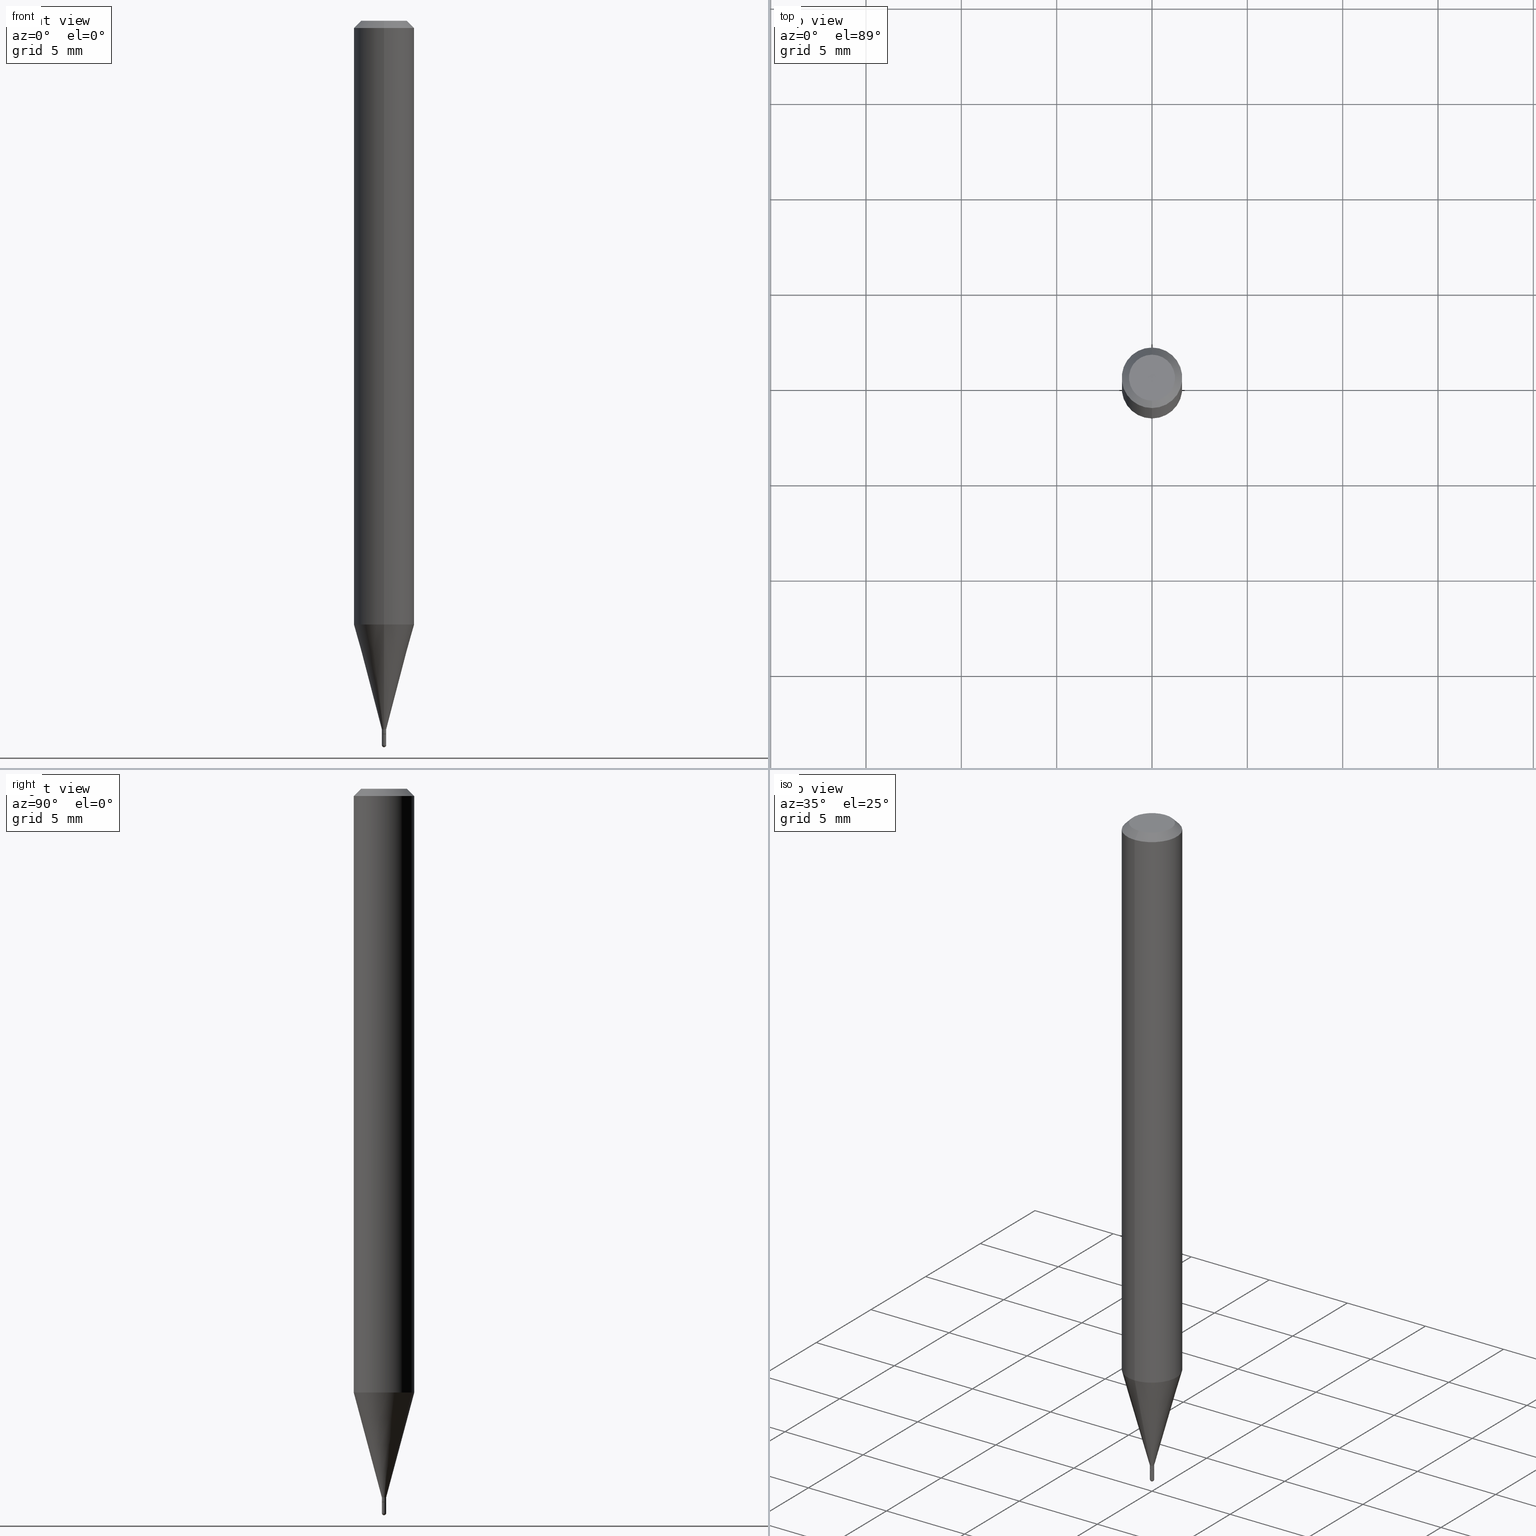
[diagram: canonical four-view strip — front | top / right | iso, engineering-drawing reading convention]
A machine part, canonical four-view strip (front | top / right | iso — engineering-drawing reading convention). The complete STEP part file that produces these views, byte-faithful:
ISO-10303-21;
HEADER;
FILE_DESCRIPTION (( 'STEP AP203' ),
    '1' );
FILE_NAME ('00447.STEP',
    '2024-03-07T17:58:04',
    ( '' ),
    ( '' ),
    'SwSTEP 2.0',
    'SolidWorks 2023',
    '' );
FILE_SCHEMA (( 'CONFIG_CONTROL_DESIGN' ));
ENDSEC;

DATA;
#1 = AXIS2_PLACEMENT_3D ( 'NONE', #334, #138, #297 ) ;
#2 = CC_DESIGN_PERSON_AND_ORGANIZATION_ASSIGNMENT ( #111, #301, ( #219 ) ) ;
#3 = FACE_OUTER_BOUND ( 'NONE', #438, .T. ) ;
#4 = VERTEX_POINT ( 'NONE', #351 ) ;
#5 = DIRECTION ( 'NONE',  ( -6.982962677686265133E-15, -1.000000000000000000, 0.000000000000000000 ) ) ;
#6 = APPROVAL ( #456, 'UNSPECIFIED' ) ;
#7 = ORIENTED_EDGE ( 'NONE', *, *, #256, .F. ) ;
#8 = DIRECTION ( 'NONE',  ( -2.445458126525809980E-29, 3.491496632723149670E-15, 1.000000000000000000 ) ) ;
#9 = ORIENTED_EDGE ( 'NONE', *, *, #318, .T. ) ;
#10 = DIRECTION ( 'NONE',  ( -2.445458126525809980E-29, 3.491496632723149670E-15, 1.000000000000000000 ) ) ;
#11 = EDGE_CURVE ( 'NONE', #126, #244, #91, .T. ) ;
#12 = ORIENTED_EDGE ( 'NONE', *, *, #139, .T. ) ;
#13 = DIRECTION ( 'NONE',  ( -2.445468806185136877E-29, 3.491481338843145188E-15, 1.000000000000000000 ) ) ;
#14 = AXIS2_PLACEMENT_3D ( 'NONE', #371, #29, #408 ) ;
#15 = AXIS2_PLACEMENT_3D ( 'NONE', #187, #103, #66 ) ;
#16 = ORIENTED_EDGE ( 'NONE', *, *, #239, .T. ) ;
#17 = LENGTH_MEASURE_WITH_UNIT ( LENGTH_MEASURE( 0.02539999999999999897 ), #141 );
#18 = CIRCLE ( 'NONE', #306, 0.04749999999999999362 ) ;
#19 = CARTESIAN_POINT ( 'NONE',  ( 0.004499999999999999660, -3.142333204958819823E-17, 2.194279549108170704E-31 ) ) ;
#20 = EDGE_CURVE ( 'NONE', #164, #349, #36, .T. ) ;
#21 = FACE_OUTER_BOUND ( 'NONE', #388, .T. ) ;
#22 = CARTESIAN_POINT ( 'NONE',  ( 0.000000000000000000, 0.000000000000000000, 0.000000000000000000 ) ) ;
#23 = DIRECTION ( 'NONE',  ( -1.807323732225331323E-15, -0.2588190451025183525, 0.9659258262890689783 ) ) ;
#24 = DIRECTION ( 'NONE',  ( -2.445468806185136597E-29, 3.491481338843145583E-15, 1.000000000000000000 ) ) ;
#25 = PRODUCT_DEFINITION ( 'UNKNOWN', '', #219, #152 ) ;
#26 = CARTESIAN_POINT ( 'NONE',  ( 3.602175551510706507E-29, -5.142952012115953829E-15, -1.473000000000000087 ) ) ;
#27 = LINE ( 'NONE', #493, #35 ) ;
#28 = DIRECTION ( 'NONE',  ( -2.445458126525809980E-29, 3.491496632723149670E-15, 1.000000000000000000 ) ) ;
#29 = DIRECTION ( 'NONE',  ( 1.000000000000000000, -6.982962677686265922E-15, 4.883557194083112340E-29 ) ) ;
#30 = EDGE_CURVE ( 'NONE', #466, #74, #78, .T. ) ;
#31 = FACE_OUTER_BOUND ( 'NONE', #479, .T. ) ;
#32 = DATE_TIME_ROLE ( 'creation_date' ) ;
#33 = AXIS2_PLACEMENT_3D ( 'NONE', #499, #375, #339 ) ;
#34 = PERSON_AND_ORGANIZATION ( #238, #417 ) ;
#35 = VECTOR ( 'NONE', #13, 39.37007874015748143 ) ;
#36 = CIRCLE ( 'NONE', #295, 0.004499999999999999660 ) ;
#37 = ORIENTED_EDGE ( 'NONE', *, *, #30, .F. ) ;
#38 = CARTESIAN_POINT ( 'NONE',  ( 4.440892098500625669E-16, 0.06250000000000000000, -2.182185395451968544E-16 ) ) ;
#39 = APPROVAL_DATE_TIME ( #189, #184 ) ;
#40 = LOCAL_TIME ( 12, 58, 4.000000000000000000, #387 ) ;
#41 = EDGE_LOOP ( 'NONE', ( #311, #319, #384, #275 ) ) ;
#42 = AXIS2_PLACEMENT_3D ( 'NONE', #332, #213, #252 ) ;
#43 = EDGE_LOOP ( 'NONE', ( #395, #272, #202, #156 ) ) ;
#44 = EDGE_LOOP ( 'NONE', ( #229, #154, #467, #389 ) ) ;
#45 = CARTESIAN_POINT ( 'NONE',  ( 3.656813774819742348E-29, -5.222061433299540145E-15, -1.495500000000000274 ) ) ;
#46 = ORIENTED_EDGE ( 'NONE', *, *, #20, .T. ) ;
#47 = CARTESIAN_POINT ( 'NONE',  ( 3.577705239107260742E-29, -5.108059573673968695E-15, -1.463000000000000300 ) ) ;
#48 = VECTOR ( 'NONE', #330, 39.37007874015748143 ) ;
#49 = ORIENTED_EDGE ( 'NONE', *, *, #494, .T. ) ;
#50 = CARTESIAN_POINT ( 'NONE',  ( 0.004499999999999999660, -5.213654509227526695E-15, -1.495500000000000496 ) ) ;
#51 = EDGE_CURVE ( 'NONE', #357, #431, #443, .T. ) ;
#52 = DIRECTION ( 'NONE',  ( -2.445468806185136597E-29, 3.491481338843145583E-15, 1.000000000000000000 ) ) ;
#53 = CARTESIAN_POINT ( 'NONE',  ( 3.602159820372517990E-29, -5.142974540001199857E-15, -1.473000000000000087 ) ) ;
#54 = EDGE_LOOP ( 'NONE', ( #307, #120, #315, #89 ) ) ;
#55 = DIRECTION ( 'NONE',  ( -6.982962677686266711E-15, -1.000000000000000000, 0.000000000000000000 ) ) ;
#56 = DIRECTION ( 'NONE',  ( -2.445458126525809980E-29, 3.491496632723149670E-15, 1.000000000000000000 ) ) ;
#57 = PRODUCT_DEFINITION_SHAPE ( 'NONE', 'NONE',  #25 ) ;
#58 = ADVANCED_FACE ( 'NONE', ( #104 ), #502, .T. ) ;
#59 = CIRCLE ( 'NONE', #180, 0.004499999999999924200 ) ;
#60 = DIRECTION ( 'NONE',  ( -2.445468806185136597E-29, 3.491481338843145583E-15, 1.000000000000000000 ) ) ;
#61 = CARTESIAN_POINT ( 'NONE',  ( -4.364351673553916201E-16, -0.06250000000000000000, 2.182185395451968544E-16 ) ) ;
#62 = CARTESIAN_POINT ( 'NONE',  ( 3.657198599649872484E-29, -5.221510342239925433E-15, -1.495500000000000496 ) ) ;
#63 = DIRECTION ( 'NONE',  ( -6.982962677686265922E-15, -1.000000000000000000, 3.491496632723149670E-15 ) ) ;
#64 =( CONVERSION_BASED_UNIT ( 'INCH', #17 ) LENGTH_UNIT ( ) NAMED_UNIT ( #82 ) );
#65 = DIRECTION ( 'NONE',  ( -7.105427357601001859E-15, -1.000000000000000000, 0.000000000000000000 ) ) ;
#66 = DIRECTION ( 'NONE',  ( -6.982962677686265922E-15, -1.000000000000000000, 4.370956789862821150E-15 ) ) ;
#67 = VECTOR ( 'NONE', #101, 39.37007874015748143 ) ;
#68 = CARTESIAN_POINT ( 'NONE',  ( 3.197442310923973968E-17, 0.004499999999994816306, -1.463000000000000300 ) ) ;
#69 = SHAPE_DEFINITION_REPRESENTATION ( #57, #145 ) ;
#70 = EDGE_CURVE ( 'NONE', #74, #466, #287, .T. ) ;
#71 = AXIS2_PLACEMENT_3D ( 'NONE', #26, #60, #131 ) ;
#72 = DIRECTION ( 'NONE',  ( -6.982962677686266711E-15, -1.000000000000000000, 0.000000000000000000 ) ) ;
#73 = CALENDAR_DATE ( 2024, 7, 3 ) ;
#74 = VERTEX_POINT ( 'NONE', #133 ) ;
#75 = EDGE_CURVE ( 'NONE', #76, #404, #128, .T. ) ;
#76 = VERTEX_POINT ( 'NONE', #452 ) ;
#77 = CIRCLE ( 'NONE', #135, 0.004000000000000000083 ) ;
#78 = CIRCLE ( 'NONE', #83, 0.004499999999999999660 ) ;
#79 = ORIENTED_EDGE ( 'NONE', *, *, #318, .F. ) ;
#80 = DIRECTION ( 'NONE',  ( -2.445468806185136597E-29, 3.491481338843145583E-15, 1.000000000000000000 ) ) ;
#81 = CIRCLE ( 'NONE', #246, 0.004499999999999925067 ) ;
#82 = DIMENSIONAL_EXPONENTS ( 1.000000000000000000, 0.000000000000000000, 0.000000000000000000, 0.000000000000000000, 0.000000000000000000, 0.000000000000000000, 0.000000000000000000 ) ;
#83 = AXIS2_PLACEMENT_3D ( 'NONE', #299, #410, #337 ) ;
#84 = VECTOR ( 'NONE', #95, 39.37007874015748143 ) ;
#85 = ORIENTED_EDGE ( 'NONE', *, *, #512, .F. ) ;
#86 = DIRECTION ( 'NONE',  ( -2.445458126525809980E-29, 3.491496632723149670E-15, 1.000000000000000000 ) ) ;
#87 = DIRECTION ( 'NONE',  ( 1.000000000000000000, -6.982962677686225690E-15, 0.000000000000000000 ) ) ;
#88 = EDGE_CURVE ( 'NONE', #266, #250, #509, .T. ) ;
#89 = ORIENTED_EDGE ( 'NONE', *, *, #374, .F. ) ;
#90 = CARTESIAN_POINT ( 'NONE',  ( 3.577705239107260742E-29, -5.108059573673968695E-15, -1.463000000000000300 ) ) ;
#91 = LINE ( 'NONE', #402, #116 ) ;
#92 = CARTESIAN_POINT ( 'NONE',  ( 3.657198599649872484E-29, -5.221510342239925433E-15, -1.495500000000000496 ) ) ;
#93 = ORIENTED_EDGE ( 'NONE', *, *, #51, .T. ) ;
#94 = ADVANCED_FACE ( 'NONE', ( #366 ), #342, .T. ) ;
#95 = DIRECTION ( 'NONE',  ( -4.937700262164674260E-15, -0.7071067811865632269, 0.7071067811865319186 ) ) ;
#96 = CARTESIAN_POINT ( 'NONE',  ( 3.602159820372517990E-29, -5.142974540001199857E-15, -1.473000000000000087 ) ) ;
#97 = CONICAL_SURFACE ( 'NONE', #390, 0.06250000000000000000, 0.7853981633974483900 ) ;
#98 = CC_DESIGN_PERSON_AND_ORGANIZATION_ASSIGNMENT ( #227, #380, ( #219 ) ) ;
#99 = CONICAL_SURFACE ( 'NONE', #496, 0.06250000000000000000, 0.7853981633974483900 ) ;
#100 = CARTESIAN_POINT ( 'NONE',  ( 0.000000000000000000, 0.000000000000000000, 0.000000000000000000 ) ) ;
#101 = DIRECTION ( 'NONE',  ( 5.024295867788190974E-15, 0.7071067811865681119, 0.7071067811865270336 ) ) ;
#102 = APPROVAL_ROLE ( '' ) ;
#103 = DIRECTION ( 'NONE',  ( -2.445458126525809980E-29, 3.491496632723149670E-15, 1.000000000000000000 ) ) ;
#104 = FACE_OUTER_BOUND ( 'NONE', #41, .T. ) ;
#105 = EDGE_CURVE ( 'NONE', #174, #76, #290, .T. ) ;
#106 = CC_DESIGN_PERSON_AND_ORGANIZATION_ASSIGNMENT ( #423, #265, ( #153 ) ) ;
#107 = DIRECTION ( 'NONE',  ( -6.982962677686265133E-15, -1.000000000000000000, 0.000000000000000000 ) ) ;
#108 = AXIS2_PLACEMENT_3D ( 'NONE', #62, #24, #214 ) ;
#109 = APPROVAL_STATUS ( 'not_yet_approved' ) ;
#110 = AXIS2_PLACEMENT_3D ( 'NONE', #293, #459, #107 ) ;
#111 = PERSON_AND_ORGANIZATION ( #238, #417 ) ;
#112 = VERTEX_POINT ( 'NONE', #415 ) ;
#113 = COORDINATED_UNIVERSAL_TIME_OFFSET ( 5, 0, .BEHIND. ) ;
#114 = ORIENTED_EDGE ( 'NONE', *, *, #473, .T. ) ;
#115 = AXIS2_PLACEMENT_3D ( 'NONE', #245, #206, #280 ) ;
#116 = VECTOR ( 'NONE', #86, 39.37007874015748143 ) ;
#117 = ORIENTED_EDGE ( 'NONE', *, *, #292, .F. ) ;
#118 = ORIENTED_EDGE ( 'NONE', *, *, #468, .T. ) ;
#119 = EDGE_CURVE ( 'NONE', #349, #466, #220, .T. ) ;
#120 = ORIENTED_EDGE ( 'NONE', *, *, #391, .T. ) ;
#121 = VECTOR ( 'NONE', #23, 39.37007874015748854 ) ;
#122 = ORIENTED_EDGE ( 'NONE', *, *, #478, .T. ) ;
#123 = ADVANCED_FACE ( 'NONE', ( #31 ), #412, .T. ) ;
#124 = ORIENTED_EDGE ( 'NONE', *, *, #458, .F. ) ;
#125 = CARTESIAN_POINT ( 'NONE',  ( 0.000000000000000000, 0.000000000000000000, 0.000000000000000000 ) ) ;
#126 = VERTEX_POINT ( 'NONE', #225 ) ;
#127 = DIRECTION ( 'NONE',  ( 2.445458126525809699E-29, -3.491496632723149670E-15, -1.000000000000000000 ) ) ;
#128 = CIRCLE ( 'NONE', #325, 0.06250000000000000000 ) ;
#129 = ORIENTED_EDGE ( 'NONE', *, *, #165, .F. ) ;
#130 = DIRECTION ( 'NONE',  ( -2.445458126525809980E-29, 3.491496632723149670E-15, 1.000000000000000000 ) ) ;
#131 = DIRECTION ( 'NONE',  ( 1.000000000000000000, -6.982962677686225690E-15, 0.000000000000000000 ) ) ;
#132 = CARTESIAN_POINT ( 'NONE',  ( 3.668187189788717229E-31, -5.237244949084727833E-17, -0.01500000000000000812 ) ) ;
#133 = CARTESIAN_POINT ( 'NONE',  ( -0.004499999999999999660, -5.150256754068735489E-15, -1.473000000000000087 ) ) ;
#134 = CARTESIAN_POINT ( 'NONE',  ( -3.142333204955188597E-17, -0.004500000000005031225, -1.463000000000000300 ) ) ;
#135 = AXIS2_PLACEMENT_3D ( 'NONE', #182, #486, #55 ) ;
#136 = DIRECTION ( 'NONE',  ( -2.445468806185136597E-29, 3.491481338843145583E-15, 1.000000000000000000 ) ) ;
#137 = DIRECTION ( 'NONE',  ( -2.445458126525809980E-29, 3.491496632723149670E-15, 1.000000000000000000 ) ) ;
#138 = DIRECTION ( 'NONE',  ( -2.445458126525809980E-29, 3.491496632723149670E-15, 1.000000000000000000 ) ) ;
#139 = EDGE_CURVE ( 'NONE', #431, #357, #18, .T. ) ;
#140 = DIRECTION ( 'NONE',  ( -2.445468806185136877E-29, 3.491481338843145188E-15, 1.000000000000000000 ) ) ;
#141 =( LENGTH_UNIT ( ) NAMED_UNIT ( * ) SI_UNIT ( $, .METRE. ) );
#142 = CARTESIAN_POINT ( 'NONE',  ( 3.657198599649872484E-29, -5.221510342239925433E-15, -1.495500000000000496 ) ) ;
#143 = COORDINATED_UNIVERSAL_TIME_OFFSET ( 5, 0, .BEHIND. ) ;
#144 = AXIS2_PLACEMENT_3D ( 'NONE', #22, #258, #63 ) ;
#145 = ADVANCED_BREP_SHAPE_REPRESENTATION ( '00447', ( #498, #501, #286 ), #222 ) ;
#146 = CARTESIAN_POINT ( 'NONE',  ( -4.364351673553912750E-16, -0.06250000000000005551, -0.01499999999999979128 ) ) ;
#147 = CALENDAR_DATE ( 2024, 7, 3 ) ;
#148 = EDGE_CURVE ( 'NONE', #430, #126, #447, .T. ) ;
#149 = VECTOR ( 'NONE', #335, 39.37007874015748854 ) ;
#150 = CARTESIAN_POINT ( 'NONE',  ( 0.000000000000000000, 0.000000000000000000, 0.000000000000000000 ) ) ;
#151 = APPROVAL_ROLE ( '' ) ;
#152 = DESIGN_CONTEXT ( 'detailed design', #422, 'design' ) ;
#153 = SECURITY_CLASSIFICATION ( '', '', #340 ) ;
#154 = ORIENTED_EDGE ( 'NONE', *, *, #195, .T. ) ;
#155 = CALENDAR_DATE ( 2024, 7, 3 ) ;
#156 = ORIENTED_EDGE ( 'NONE', *, *, #75, .F. ) ;
#157 = AXIS2_PLACEMENT_3D ( 'NONE', #200, #8, #317 ) ;
#158 = ADVANCED_FACE ( 'NONE', ( #369 ), #263, .T. ) ;
#159 = ADVANCED_FACE ( 'NONE', ( #223 ), #281, .T. ) ;
#160 = ORIENTED_EDGE ( 'NONE', *, *, #30, .T. ) ;
#161 = DIRECTION ( 'NONE',  ( 6.982962677686265922E-15, 1.000000000000000000, -3.483106191921935554E-15 ) ) ;
#162 = ORIENTED_EDGE ( 'NONE', *, *, #88, .T. ) ;
#163 = DIRECTION ( 'NONE',  ( -6.982962677686265922E-15, -1.000000000000000000, 3.491496632723149670E-15 ) ) ;
#164 = VERTEX_POINT ( 'NONE', #296 ) ;
#165 = EDGE_CURVE ( 'NONE', #112, #4, #455, .T. ) ;
#166 = ORIENTED_EDGE ( 'NONE', *, *, #148, .T. ) ;
#167 = DIRECTION ( 'NONE',  ( 2.445458126525809980E-29, -3.491496632723149670E-15, -1.000000000000000000 ) ) ;
#168 = ORIENTED_EDGE ( 'NONE', *, *, #105, .T. ) ;
#169 = FACE_OUTER_BOUND ( 'NONE', #54, .T. ) ;
#170 = DIRECTION ( 'NONE',  ( 1.000000000000000000, -6.982962677686225690E-15, 0.000000000000000000 ) ) ;
#171 = DIRECTION ( 'NONE',  ( -6.982962677686266711E-15, -1.000000000000000000, 0.000000000000000000 ) ) ;
#172 = CIRCLE ( 'NONE', #381, 0.004499999999999955425 ) ;
#173 = VECTOR ( 'NONE', #436, 39.37007874015748143 ) ;
#174 = VERTEX_POINT ( 'NONE', #377 ) ;
#175 =( NAMED_UNIT ( * ) PLANE_ANGLE_UNIT ( ) SI_UNIT ( $, .RADIAN. ) );
#176 = DIRECTION ( 'NONE',  ( 1.000000000000000000, -6.982962677686266711E-15, 4.876176775795935232E-29 ) ) ;
#177 = PERSON_AND_ORGANIZATION_ROLE ( 'design_owner' ) ;
#178 = CARTESIAN_POINT ( 'NONE',  ( 3.602159820372517990E-29, -5.142974540001199857E-15, -1.473000000000000087 ) ) ;
#179 = ADVANCED_FACE ( 'NONE', ( #488 ), #181, .T. ) ;
#180 = AXIS2_PLACEMENT_3D ( 'NONE', #47, #241, #355 ) ;
#181 = CYLINDRICAL_SURFACE ( 'NONE', #33, 0.004499999999999999660 ) ;
#182 = CARTESIAN_POINT ( 'NONE',  ( 3.602159820372517990E-29, -5.142974540001199857E-15, -1.473000000000000087 ) ) ;
#183 = DIRECTION ( 'NONE',  ( -6.982962677686265922E-15, -1.000000000000000000, 3.491496632723149670E-15 ) ) ;
#184 = APPROVAL ( #109, 'UNSPECIFIED' ) ;
#185 = DIRECTION ( 'NONE',  ( -2.445458126525809980E-29, 3.491496632723149670E-15, 1.000000000000000000 ) ) ;
#186 = PERSON_AND_ORGANIZATION_ROLE ( 'creator' ) ;
#187 = CARTESIAN_POINT ( 'NONE',  ( 3.048363948500623779E-29, -4.352293889662820789E-15, -1.246541053161005941 ) ) ;
#188 = LINE ( 'NONE', #38, #474 ) ;
#189 = DATE_AND_TIME ( #338, #429 ) ;
#190 = CALENDAR_DATE ( 2024, 7, 3 ) ;
#191 = ORIENTED_EDGE ( 'NONE', *, *, #391, .F. ) ;
#192 = VERTEX_POINT ( 'NONE', #146 ) ;
#193 = LOCAL_TIME ( 12, 58, 4.000000000000000000, #465 ) ;
#194 = APPROVAL_DATE_TIME ( #271, #507 ) ;
#195 = EDGE_CURVE ( 'NONE', #4, #174, #305, .T. ) ;
#196 = APPROVAL_PERSON_ORGANIZATION ( #333, #6, #102 ) ;
#197 = ORIENTED_EDGE ( 'NONE', *, *, #264, .T. ) ;
#198 = CARTESIAN_POINT ( 'NONE',  ( -3.773273898774340269E-16, -0.04749999999999999362, 1.569864969218186754E-16 ) ) ;
#199 = ORIENTED_EDGE ( 'NONE', *, *, #308, .F. ) ;
#200 = CARTESIAN_POINT ( 'NONE',  ( 0.000000000000000000, 0.000000000000000000, 0.000000000000000000 ) ) ;
#201 = EDGE_CURVE ( 'NONE', #76, #362, #188, .T. ) ;
#202 = ORIENTED_EDGE ( 'NONE', *, *, #458, .T. ) ;
#203 = ORIENTED_EDGE ( 'NONE', *, *, #165, .T. ) ;
#204 = CARTESIAN_POINT ( 'NONE',  ( -4.287811248607203282E-16, -0.06250000000000005551, -0.01499999999999979128 ) ) ;
#205 = EDGE_LOOP ( 'NONE', ( #7, #16, #79, #426 ) ) ;
#206 = DIRECTION ( 'NONE',  ( -2.445458126525809980E-29, 3.491496632723149670E-15, 1.000000000000000000 ) ) ;
#207 = ORIENTED_EDGE ( 'NONE', *, *, #478, .F. ) ;
#208 = PERSON_AND_ORGANIZATION ( #238, #417 ) ;
#209 = ADVANCED_FACE ( 'NONE', ( #440 ), #322, .T. ) ;
#210 = PRODUCT_RELATED_PRODUCT_CATEGORY ( 'detail', '', ( #242 ) ) ;
#211 = ORIENTED_EDGE ( 'NONE', *, *, #70, .T. ) ;
#212 = CARTESIAN_POINT ( 'NONE',  ( 0.000000000000000000, 0.000000000000000000, 0.000000000000000000 ) ) ;
#213 = DIRECTION ( 'NONE',  ( -2.445458126525809980E-29, 3.491496632723149670E-15, 1.000000000000000000 ) ) ;
#214 = DIRECTION ( 'NONE',  ( 1.000000000000000000, -6.982962677686225690E-15, 0.000000000000000000 ) ) ;
#215 = CARTESIAN_POINT ( 'NONE',  ( 3.048363948500623779E-29, -4.352293889662820789E-15, -1.246541053161005941 ) ) ;
#216 = ADVANCED_FACE ( 'NONE', ( #454 ), #97, .T. ) ;
#217 = DIRECTION ( 'NONE',  ( -2.445458126525809980E-29, 3.491496632723149670E-15, 1.000000000000000000 ) ) ;
#218 = PLANE ( 'NONE',  #451 ) ;
#219 = PRODUCT_DEFINITION_FORMATION_WITH_SPECIFIED_SOURCE ( 'ANY', '', #242, .NOT_KNOWN. ) ;
#220 = LINE ( 'NONE', #19, #463 ) ;
#221 = DIRECTION ( 'NONE',  ( 6.982962677686265922E-15, 1.000000000000000000, -3.483106191921935554E-15 ) ) ;
#222 =( GEOMETRIC_REPRESENTATION_CONTEXT ( 3 ) GLOBAL_UNCERTAINTY_ASSIGNED_CONTEXT ( ( #386 ) ) GLOBAL_UNIT_ASSIGNED_CONTEXT ( ( #64, #175, #445 ) ) REPRESENTATION_CONTEXT ( 'NONE', 'WORKASPACE' ) );
#223 = FACE_OUTER_BOUND ( 'NONE', #398, .T. ) ;
#224 = DIRECTION ( 'NONE',  ( -1.000000000000000000, 7.105427357601001070E-15, -4.926315508542082329E-29 ) ) ;
#225 = CARTESIAN_POINT ( 'NONE',  ( -3.142333204955176271E-17, -0.004500000000005079798, -1.472500000000000142 ) ) ;
#226 = DATE_TIME_ROLE ( 'classification_date' ) ;
#227 = PERSON_AND_ORGANIZATION ( #238, #417 ) ;
#228 = ORIENTED_EDGE ( 'NONE', *, *, #139, .F. ) ;
#229 = ORIENTED_EDGE ( 'NONE', *, *, #428, .T. ) ;
#230 = CLOSED_SHELL ( 'NONE', ( #179, #434, #232, #58, #123 ) ) ;
#231 = PERSON_AND_ORGANIZATION ( #238, #417 ) ;
#232 = ADVANCED_FACE ( 'NONE', ( #259 ), #331, .F. ) ;
#233 = ORIENTED_EDGE ( 'NONE', *, *, #276, .F. ) ;
#234 = DIRECTION ( 'NONE',  ( -6.982962677686265922E-15, -1.000000000000000000, 3.483106191921935554E-15 ) ) ;
#235 = CIRCLE ( 'NONE', #14, 0.004499999999999955425 ) ;
#236 = AXIS2_PLACEMENT_3D ( 'NONE', #289, #56, #234 ) ;
#237 = CARTESIAN_POINT ( 'NONE',  ( 3.316907271900976096E-16, 0.04749999999999999362, -1.702758866206150418E-16 ) ) ;
#238 = PERSON ( 'UNSPECIFIED', 'UNSPECIFIED', 'UNSPECIFIED', ('UNSPECIFIED'), ('UNSPECIFIED'), ('UNSPECIFIED') ) ;
#239 = EDGE_CURVE ( 'NONE', #485, #164, #172, .T. ) ;
#240 = ORIENTED_EDGE ( 'NONE', *, *, #468, .F. ) ;
#241 = DIRECTION ( 'NONE',  ( -2.445458126525809980E-29, 3.491496632723149670E-15, 1.000000000000000000 ) ) ;
#242 = PRODUCT ( '00447', '00447', '', ( #253 ) ) ;
#243 = CARTESIAN_POINT ( 'NONE',  ( 3.657198599649872484E-29, -5.221510342239925433E-15, -1.495500000000000496 ) ) ;
#244 = VERTEX_POINT ( 'NONE', #450 ) ;
#245 = CARTESIAN_POINT ( 'NONE',  ( 3.602159820372517990E-29, -5.142974540001199857E-15, -1.473000000000000087 ) ) ;
#246 = AXIS2_PLACEMENT_3D ( 'NONE', #248, #313, #403 ) ;
#247 = EDGE_LOOP ( 'NONE', ( #207, #288 ) ) ;
#248 = CARTESIAN_POINT ( 'NONE',  ( 3.600937091309255156E-29, -5.141228791684838417E-15, -1.472500000000000142 ) ) ;
#249 = ADVANCED_FACE ( 'NONE', ( #487 ), #218, .F. ) ;
#250 = VERTEX_POINT ( 'NONE', #497 ) ;
#251 = DIRECTION ( 'NONE',  ( -1.000000000000000000, 6.982962677686265922E-15, -4.876176775795935793E-29 ) ) ;
#252 = DIRECTION ( 'NONE',  ( -6.982962677686266711E-15, -1.000000000000000000, 3.491496632723149670E-15 ) ) ;
#253 = MECHANICAL_CONTEXT ( 'NONE', #267, 'mechanical' ) ;
#254 = AXIS2_PLACEMENT_3D ( 'NONE', #178, #185, #72 ) ;
#255 = CIRCLE ( 'NONE', #461, 0.004499999999999999660 ) ;
#256 = EDGE_CURVE ( 'NONE', #485, #266, #235, .T. ) ;
#257 = AXIS2_PLACEMENT_3D ( 'NONE', #406, #298, #457 ) ;
#258 = DIRECTION ( 'NONE',  ( -2.445458126525809980E-29, 3.491496632723149670E-15, 1.000000000000000000 ) ) ;
#259 = FACE_OUTER_BOUND ( 'NONE', #435, .T. ) ;
#260 = DIRECTION ( 'NONE',  ( -2.445468806185136597E-29, 3.491481338843145583E-15, 1.000000000000000000 ) ) ;
#261 = DIRECTION ( 'NONE',  ( -6.982962677686265922E-15, -1.000000000000000000, 4.370956789862821150E-15 ) ) ;
#262 = DIRECTION ( 'NONE',  ( 2.445458126525809980E-29, -3.491496632723149670E-15, -1.000000000000000000 ) ) ;
#263 = CYLINDRICAL_SURFACE ( 'NONE', #144, 0.06250000000000000000 ) ;
#264 = EDGE_CURVE ( 'NONE', #349, #266, #302, .T. ) ;
#265 = PERSON_AND_ORGANIZATION_ROLE ( 'classification_officer' ) ;
#266 = VERTEX_POINT ( 'NONE', #368 ) ;
#267 = APPLICATION_CONTEXT ( 'configuration controlled 3d designs of mechanical parts and assemblies' ) ;
#268 = APPROVAL_DATE_TIME ( #383, #6 ) ;
#269 = ADVANCED_FACE ( 'NONE', ( #21 ), #475, .T. ) ;
#270 = AXIS2_PLACEMENT_3D ( 'NONE', #53, #217, #171 ) ;
#271 = DATE_AND_TIME ( #147, #40 ) ;
#272 = ORIENTED_EDGE ( 'NONE', *, *, #374, .T. ) ;
#273 = ORIENTED_EDGE ( 'NONE', *, *, #292, .T. ) ;
#274 = DIRECTION ( 'NONE',  ( -2.445458126525809980E-29, 3.491496632723149670E-15, 1.000000000000000000 ) ) ;
#275 = ORIENTED_EDGE ( 'NONE', *, *, #20, .F. ) ;
#276 = EDGE_CURVE ( 'NONE', #404, #76, #508, .T. ) ;
#277 = ORIENTED_EDGE ( 'NONE', *, *, #282, .F. ) ;
#278 = CARTESIAN_POINT ( 'NONE',  ( 3.668187189788717229E-31, -5.237244949084727833E-17, -0.01500000000000000812 ) ) ;
#279 = ORIENTED_EDGE ( 'NONE', *, *, #379, .T. ) ;
#280 = DIRECTION ( 'NONE',  ( -6.982962677686266711E-15, -1.000000000000000000, 0.000000000000000000 ) ) ;
#281 = CONICAL_SURFACE ( 'NONE', #254, 0.004000000000000000083, 0.7853981633974739252 ) ;
#282 = EDGE_CURVE ( 'NONE', #192, #362, #346, .T. ) ;
#283 = ORIENTED_EDGE ( 'NONE', *, *, #119, .T. ) ;
#284 = FACE_OUTER_BOUND ( 'NONE', #469, .T. ) ;
#285 = CIRCLE ( 'NONE', #236, 0.06250000000000000000 ) ;
#286 = AXIS2_PLACEMENT_3D ( 'NONE', #212, #328, #489 ) ;
#287 = CIRCLE ( 'NONE', #71, 0.004499999999999999660 ) ;
#288 = ORIENTED_EDGE ( 'NONE', *, *, #494, .F. ) ;
#289 = CARTESIAN_POINT ( 'NONE',  ( 3.668187189788717229E-31, -5.237244949084727833E-17, -0.01500000000000000812 ) ) ;
#290 = LINE ( 'NONE', #68, #149 ) ;
#291 = APPLICATION_PROTOCOL_DEFINITION ( 'international standard', 'config_control_design', 1994, #267 ) ;
#292 = EDGE_CURVE ( 'NONE', #362, #192, #285, .T. ) ;
#293 = CARTESIAN_POINT ( 'NONE',  ( 3.577705239107260742E-29, -5.108059573673968695E-15, -1.463000000000000300 ) ) ;
#294 = AXIS2_PLACEMENT_3D ( 'NONE', #237, #127, #358 ) ;
#295 = AXIS2_PLACEMENT_3D ( 'NONE', #243, #52, #170 ) ;
#296 = CARTESIAN_POINT ( 'NONE',  ( -3.197442310916777461E-17, -0.004500000000005199494, -1.495500000000000496 ) ) ;
#297 = DIRECTION ( 'NONE',  ( -6.982962677686265133E-15, -1.000000000000000000, 0.000000000000000000 ) ) ;
#298 = DIRECTION ( 'NONE',  ( -1.000000000000000000, 6.982962677686265922E-15, -4.883557194083112340E-29 ) ) ;
#299 = CARTESIAN_POINT ( 'NONE',  ( 3.602175551510706507E-29, -5.142952012115953829E-15, -1.473000000000000087 ) ) ;
#300 = ADVANCED_FACE ( 'NONE', ( #477 ), #99, .T. ) ;
#301 = PERSON_AND_ORGANIZATION_ROLE ( 'creator' ) ;
#302 = CIRCLE ( 'NONE', #108, 0.004499999999999999660 ) ;
#303 = AXIS2_PLACEMENT_3D ( 'NONE', #125, #442, #163 ) ;
#304 = CC_DESIGN_APPROVAL ( #6, ( #25 ) ) ;
#305 = LINE ( 'NONE', #464, #416 ) ;
#306 = AXIS2_PLACEMENT_3D ( 'NONE', #329, #28, #419 ) ;
#307 = ORIENTED_EDGE ( 'NONE', *, *, #195, .F. ) ;
#308 = EDGE_CURVE ( 'NONE', #431, #192, #401, .T. ) ;
#309 = CC_DESIGN_APPROVAL ( #184, ( #219 ) ) ;
#310 = ORIENTED_EDGE ( 'NONE', *, *, #282, .T. ) ;
#311 = ORIENTED_EDGE ( 'NONE', *, *, #239, .F. ) ;
#312 = CARTESIAN_POINT ( 'NONE',  ( 3.600937091309255156E-29, -5.141228791684838417E-15, -1.472500000000000142 ) ) ;
#313 = DIRECTION ( 'NONE',  ( -2.445458126525809980E-29, 3.491496632723149670E-15, 1.000000000000000000 ) ) ;
#314 = CIRCLE ( 'NONE', #364, 0.004499999999999924200 ) ;
#315 = ORIENTED_EDGE ( 'NONE', *, *, #11, .T. ) ;
#316 = ORIENTED_EDGE ( 'NONE', *, *, #428, .F. ) ;
#317 = DIRECTION ( 'NONE',  ( -6.982962677686265922E-15, -1.000000000000000000, 3.491496632723150065E-15 ) ) ;
#318 = EDGE_CURVE ( 'NONE', #250, #164, #255, .T. ) ;
#319 = ORIENTED_EDGE ( 'NONE', *, *, #256, .T. ) ;
#320 = CARTESIAN_POINT ( 'NONE',  ( -4.364351673553611010E-16, -0.06250000000000435763, -1.246541053161005719 ) ) ;
#321 = AXIS2_PLACEMENT_3D ( 'NONE', #446, #418, #251 ) ;
#322 = CYLINDRICAL_SURFACE ( 'NONE', #483, 0.004499999999999924200 ) ;
#323 = ORIENTED_EDGE ( 'NONE', *, *, #308, .T. ) ;
#324 = CARTESIAN_POINT ( 'NONE',  ( 3.668010796862640388E-29, -5.237497553794526716E-15, -1.500000000000000222 ) ) ;
#325 = AXIS2_PLACEMENT_3D ( 'NONE', #215, #495, #261 ) ;
#326 = CARTESIAN_POINT ( 'NONE',  ( 2.842170943044002446E-17, 0.003999999999994857496, -1.473000000000000087 ) ) ;
#327 = ADVANCED_FACE ( 'NONE', ( #3 ), #439, .F. ) ;
#328 = DIRECTION ( 'NONE',  ( 0.000000000000000000, 0.000000000000000000, 1.000000000000000000 ) ) ;
#329 = CARTESIAN_POINT ( 'NONE',  ( 2.166576402365995033E-46, -3.093323958952878323E-32, -8.859593132530900608E-18 ) ) ;
#330 = DIRECTION ( 'NONE',  ( 4.937700262164548042E-15, 0.7071067811865451302, -0.7071067811865499042 ) ) ;
#331 = PLANE ( 'NONE',  #321 ) ;
#332 = CARTESIAN_POINT ( 'NONE',  ( 2.166576402365995033E-46, -3.093323958952878323E-32, -8.859593132530900608E-18 ) ) ;
#333 = PERSON_AND_ORGANIZATION ( #238, #417 ) ;
#334 = CARTESIAN_POINT ( 'NONE',  ( 3.577705239107260742E-29, -5.108059573673968695E-15, -1.463000000000000300 ) ) ;
#335 = DIRECTION ( 'NONE',  ( 1.839019923739601499E-15, 0.2588190451025251249, 0.9659258262890670910 ) ) ;
#336 = CARTESIAN_POINT ( 'NONE',  ( 3.668187189788717229E-31, -5.237244949084727833E-17, -0.01500000000000000812 ) ) ;
#337 = DIRECTION ( 'NONE',  ( 1.000000000000000000, -6.982962677686225690E-15, 0.000000000000000000 ) ) ;
#338 = CALENDAR_DATE ( 2024, 7, 3 ) ;
#339 = DIRECTION ( 'NONE',  ( 1.000000000000000000, -6.982962677686266711E-15, 4.876176775795935232E-29 ) ) ;
#340 = SECURITY_CLASSIFICATION_LEVEL ( 'unclassified' ) ;
#341 = CIRCLE ( 'NONE', #484, 0.004499999999999925067 ) ;
#342 = CONICAL_SURFACE ( 'NONE', #110, 0.004499999999999924200, 0.2617993877991504625 ) ;
#343 = EDGE_LOOP ( 'NONE', ( #228, #323, #310, #85 ) ) ;
#344 = DATE_AND_TIME ( #155, #193 ) ;
#345 = EDGE_LOOP ( 'NONE', ( #162, #114, #37, #400, #197 ) ) ;
#346 = CIRCLE ( 'NONE', #425, 0.06250000000000000000 ) ;
#347 = ORIENTED_EDGE ( 'NONE', *, *, #276, .T. ) ;
#348 = FACE_OUTER_BOUND ( 'NONE', #205, .T. ) ;
#349 = VERTEX_POINT ( 'NONE', #50 ) ;
#350 = FACE_OUTER_BOUND ( 'NONE', #354, .T. ) ;
#351 = CARTESIAN_POINT ( 'NONE',  ( 3.197442310923987527E-17, 0.004499999999994769469, -1.472500000000000142 ) ) ;
#352 = LINE ( 'NONE', #134, #121 ) ;
#353 = CONICAL_SURFACE ( 'NONE', #115, 0.004000000000000000083, 0.7853981633974739252 ) ;
#354 = EDGE_LOOP ( 'NONE', ( #347, #360, #277, #240 ) ) ;
#355 = DIRECTION ( 'NONE',  ( -6.982962677686265133E-15, -1.000000000000000000, 0.000000000000000000 ) ) ;
#356 = ADVANCED_FACE ( 'NONE', ( #284 ), #353, .T. ) ;
#357 = VERTEX_POINT ( 'NONE', #399 ) ;
#358 = DIRECTION ( 'NONE',  ( 6.982962677686265922E-15, 1.000000000000000000, -3.491496632723149670E-15 ) ) ;
#359 = CC_DESIGN_DATE_AND_TIME_ASSIGNMENT ( #344, #32, ( #25 ) ) ;
#360 = ORIENTED_EDGE ( 'NONE', *, *, #201, .T. ) ;
#361 = DIRECTION ( 'NONE',  ( 6.982962677686265922E-15, 1.000000000000000000, 0.000000000000000000 ) ) ;
#362 = VERTEX_POINT ( 'NONE', #472 ) ;
#363 = LINE ( 'NONE', #61, #407 ) ;
#364 = AXIS2_PLACEMENT_3D ( 'NONE', #90, #274, #5 ) ;
#365 = AXIS2_PLACEMENT_3D ( 'NONE', #142, #136, #492 ) ;
#366 = FACE_OUTER_BOUND ( 'NONE', #43, .T. ) ;
#367 = CARTESIAN_POINT ( 'NONE',  ( 4.364351673553919652E-16, 0.06249999999999995143, -0.01500000000000022669 ) ) ;
#368 = CARTESIAN_POINT ( 'NONE',  ( 3.142333204962461525E-17, 0.004499999999994755591, -1.495500000000000496 ) ) ;
#369 = FACE_OUTER_BOUND ( 'NONE', #393, .T. ) ;
#370 = APPLICATION_PROTOCOL_DEFINITION ( 'international standard', 'config_control_design', 1994, #422 ) ;
#371 = CARTESIAN_POINT ( 'NONE',  ( 3.656813774819742348E-29, -5.222061433299540145E-15, -1.495500000000000274 ) ) ;
#372 = CARTESIAN_POINT ( 'NONE',  ( -2.793185071070904523E-17, -0.004000000000005143538, -1.473000000000000087 ) ) ;
#373 = DIRECTION ( 'NONE',  ( -6.982962677686265922E-15, -1.000000000000000000, 3.483106191921935554E-15 ) ) ;
#374 = EDGE_CURVE ( 'NONE', #174, #244, #314, .T. ) ;
#375 = DIRECTION ( 'NONE',  ( -2.445468806185136597E-29, 3.491481338843145583E-15, 1.000000000000000000 ) ) ;
#376 = DIRECTION ( 'NONE',  ( -2.445458126525809980E-29, 3.491496632723149670E-15, 1.000000000000000000 ) ) ;
#377 = CARTESIAN_POINT ( 'NONE',  ( 2.380318164796665607E-16, 0.004499999999994816306, -1.463000000000000300 ) ) ;
#378 = LOCAL_TIME ( 12, 58, 4.000000000000000000, #113 ) ;
#379 = EDGE_CURVE ( 'NONE', #244, #174, #59, .T. ) ;
#380 = PERSON_AND_ORGANIZATION_ROLE ( 'design_supplier' ) ;
#381 = AXIS2_PLACEMENT_3D ( 'NONE', #500, #224, #65 ) ;
#382 = AXIS2_PLACEMENT_3D ( 'NONE', #45, #414, #361 ) ;
#383 = DATE_AND_TIME ( #190, #462 ) ;
#384 = ORIENTED_EDGE ( 'NONE', *, *, #264, .F. ) ;
#385 = CC_DESIGN_PERSON_AND_ORGANIZATION_ASSIGNMENT ( #503, #186, ( #25 ) ) ;
#386 = UNCERTAINTY_MEASURE_WITH_UNIT (LENGTH_MEASURE( 1.000000000000000082E-05 ), #64, 'distance_accuracy_value', 'NONE');
#387 = COORDINATED_UNIVERSAL_TIME_OFFSET ( 5, 0, .BEHIND. ) ;
#388 = EDGE_LOOP ( 'NONE', ( #279, #168, #233, #124 ) ) ;
#389 = ORIENTED_EDGE ( 'NONE', *, *, #11, .F. ) ;
#390 = AXIS2_PLACEMENT_3D ( 'NONE', #132, #262, #221 ) ;
#391 = EDGE_CURVE ( 'NONE', #4, #126, #341, .T. ) ;
#392 = CC_DESIGN_DATE_AND_TIME_ASSIGNMENT ( #506, #226, ( #153 ) ) ;
#393 = EDGE_LOOP ( 'NONE', ( #427, #476, #118, #117 ) ) ;
#394 = CYLINDRICAL_SURFACE ( 'NONE', #157, 0.004499999999999924200 ) ;
#395 = ORIENTED_EDGE ( 'NONE', *, *, #105, .F. ) ;
#396 = SPHERICAL_SURFACE ( 'NONE', #382, 0.004499999999999955425 ) ;
#397 = ADVANCED_FACE ( 'NONE', ( #169 ), #394, .T. ) ;
#398 = EDGE_LOOP ( 'NONE', ( #122, #203, #316, #424 ) ) ;
#399 = CARTESIAN_POINT ( 'NONE',  ( 3.840629472727447874E-16, 0.04749999999999999362, -1.747056831868805136E-16 ) ) ;
#400 = ORIENTED_EDGE ( 'NONE', *, *, #119, .F. ) ;
#401 = LINE ( 'NONE', #204, #173 ) ;
#402 = CARTESIAN_POINT ( 'NONE',  ( -3.142333204958766821E-17, -0.004499999999999924200, 1.571173484725390986E-17 ) ) ;
#403 = DIRECTION ( 'NONE',  ( -6.982962677686265133E-15, -1.000000000000000000, 0.000000000000000000 ) ) ;
#404 = VERTEX_POINT ( 'NONE', #320 ) ;
#405 = DIRECTION ( 'NONE',  ( -2.445458126525809699E-29, 3.491496632723149670E-15, 1.000000000000000000 ) ) ;
#406 = CARTESIAN_POINT ( 'NONE',  ( 3.656813774819742348E-29, -5.222061433299540145E-15, -1.495500000000000274 ) ) ;
#407 = VECTOR ( 'NONE', #137, 39.37007874015748143 ) ;
#408 = DIRECTION ( 'NONE',  ( 6.982962677686266711E-15, 1.000000000000000000, 0.000000000000000000 ) ) ;
#409 = CLOSED_SHELL ( 'NONE', ( #209, #159, #216, #413, #269, #94, #158, #300, #327, #249, #356, #397 ) ) ;
#410 = DIRECTION ( 'NONE',  ( -2.445468806185136597E-29, 3.491481338843145583E-15, 1.000000000000000000 ) ) ;
#411 = LINE ( 'NONE', #367, #48 ) ;
#412 = CYLINDRICAL_SURFACE ( 'NONE', #433, 0.004499999999999999660 ) ;
#413 = ADVANCED_FACE ( 'NONE', ( #350 ), #482, .T. ) ;
#414 = DIRECTION ( 'NONE',  ( -1.000000000000000000, 6.982962677686265922E-15, -4.883557194083112340E-29 ) ) ;
#415 = CARTESIAN_POINT ( 'NONE',  ( 3.019806626983999917E-17, 0.003999999999994857496, -1.473000000000000087 ) ) ;
#416 = VECTOR ( 'NONE', #505, 39.37007874015748143 ) ;
#417 = ORGANIZATION ( 'UNSPECIFIED', 'UNSPECIFIED', '' ) ;
#418 = DIRECTION ( 'NONE',  ( 2.438088387897960049E-29, -3.491481338843145188E-15, -1.000000000000000000 ) ) ;
#419 = DIRECTION ( 'NONE',  ( -6.982962677686266711E-15, -1.000000000000000000, 3.491496632723149670E-15 ) ) ;
#420 = APPROVAL_ROLE ( '' ) ;
#421 = ORIENTED_EDGE ( 'NONE', *, *, #51, .F. ) ;
#422 = APPLICATION_CONTEXT ( 'configuration controlled 3d designs of mechanical parts and assemblies' ) ;
#423 = PERSON_AND_ORGANIZATION ( #238, #417 ) ;
#424 = ORIENTED_EDGE ( 'NONE', *, *, #148, .F. ) ;
#425 = AXIS2_PLACEMENT_3D ( 'NONE', #336, #130, #373 ) ;
#426 = ORIENTED_EDGE ( 'NONE', *, *, #88, .F. ) ;
#427 = ORIENTED_EDGE ( 'NONE', *, *, #201, .F. ) ;
#428 = EDGE_CURVE ( 'NONE', #126, #4, #81, .T. ) ;
#429 = LOCAL_TIME ( 12, 58, 4.000000000000000000, #143 ) ;
#430 = VERTEX_POINT ( 'NONE', #432 ) ;
#431 = VERTEX_POINT ( 'NONE', #198 ) ;
#432 = CARTESIAN_POINT ( 'NONE',  ( -2.793185071070904523E-17, -0.004000000000005143538, -1.473000000000000087 ) ) ;
#433 = AXIS2_PLACEMENT_3D ( 'NONE', #100, #260, #176 ) ;
#434 = ADVANCED_FACE ( 'NONE', ( #348 ), #396, .T. ) ;
#435 = EDGE_LOOP ( 'NONE', ( #160, #211 ) ) ;
#436 = DIRECTION ( 'NONE',  ( -4.851104656540964275E-15, -0.7071067811865500152, -0.7071067811865450192 ) ) ;
#437 = CC_DESIGN_PERSON_AND_ORGANIZATION_ASSIGNMENT ( #208, #177, ( #242 ) ) ;
#438 = EDGE_LOOP ( 'NONE', ( #93, #12 ) ) ;
#439 = PLANE ( 'NONE',  #294 ) ;
#440 = FACE_OUTER_BOUND ( 'NONE', #44, .T. ) ;
#441 = EDGE_LOOP ( 'NONE', ( #199, #421, #444, #273 ) ) ;
#442 = DIRECTION ( 'NONE',  ( -2.445458126525809980E-29, 3.491496632723149670E-15, 1.000000000000000000 ) ) ;
#443 = CIRCLE ( 'NONE', #42, 0.04749999999999999362 ) ;
#444 = ORIENTED_EDGE ( 'NONE', *, *, #512, .T. ) ;
#445 =( NAMED_UNIT ( * ) SI_UNIT ( $, .STERADIAN. ) SOLID_ANGLE_UNIT ( ) );
#446 = CARTESIAN_POINT ( 'NONE',  ( 3.142333204962421466E-17, 0.004499999999994856205, -1.473000000000000087 ) ) ;
#447 = LINE ( 'NONE', #372, #84 ) ;
#448 = CC_DESIGN_APPROVAL ( #507, ( #153 ) ) ;
#449 = CARTESIAN_POINT ( 'NONE',  ( 0.004499999999999999660, -5.174375344165541682E-15, -1.473000000000000087 ) ) ;
#450 = CARTESIAN_POINT ( 'NONE',  ( -3.142333204955188597E-17, -0.004500000000005031225, -1.463000000000000300 ) ) ;
#451 = AXIS2_PLACEMENT_3D ( 'NONE', #96, #405, #183 ) ;
#452 = CARTESIAN_POINT ( 'NONE',  ( 4.440892098500930859E-16, 0.06249999999999565625, -1.246541053161006163 ) ) ;
#453 = CIRCLE ( 'NONE', #270, 0.004000000000000000083 ) ;
#454 = FACE_OUTER_BOUND ( 'NONE', #343, .T. ) ;
#455 = LINE ( 'NONE', #326, #67 ) ;
#456 = APPROVAL_STATUS ( 'not_yet_approved' ) ;
#457 = DIRECTION ( 'NONE',  ( 6.982962677686265922E-15, 1.000000000000000000, 0.000000000000000000 ) ) ;
#458 = EDGE_CURVE ( 'NONE', #244, #404, #352, .T. ) ;
#459 = DIRECTION ( 'NONE',  ( -2.445458126525809980E-29, 3.491496632723149670E-15, 1.000000000000000000 ) ) ;
#460 = COORDINATED_UNIVERSAL_TIME_OFFSET ( 5, 0, .BEHIND. ) ;
#461 = AXIS2_PLACEMENT_3D ( 'NONE', #92, #80, #87 ) ;
#462 = LOCAL_TIME ( 12, 58, 4.000000000000000000, #460 ) ;
#463 = VECTOR ( 'NONE', #140, 39.37007874015748143 ) ;
#464 = CARTESIAN_POINT ( 'NONE',  ( 3.197442310920396977E-17, 0.004499999999999924200, -1.571173484725390986E-17 ) ) ;
#465 = COORDINATED_UNIVERSAL_TIME_OFFSET ( 5, 0, .BEHIND. ) ;
#466 = VERTEX_POINT ( 'NONE', #449 ) ;
#467 = ORIENTED_EDGE ( 'NONE', *, *, #379, .F. ) ;
#468 = EDGE_CURVE ( 'NONE', #404, #192, #363, .T. ) ;
#469 = EDGE_LOOP ( 'NONE', ( #129, #49, #166, #191 ) ) ;
#470 = DIRECTION ( 'NONE',  ( -6.982962677686265133E-15, -1.000000000000000000, 0.000000000000000000 ) ) ;
#471 = ORIENTED_EDGE ( 'NONE', *, *, #473, .F. ) ;
#472 = CARTESIAN_POINT ( 'NONE',  ( 4.440892098500932831E-16, 0.06249999999999995143, -0.01500000000000022669 ) ) ;
#473 = EDGE_CURVE ( 'NONE', #250, #74, #27, .T. ) ;
#474 = VECTOR ( 'NONE', #491, 39.37007874015748143 ) ;
#475 = CONICAL_SURFACE ( 'NONE', #1, 0.004499999999999924200, 0.2617993877991504625 ) ;
#476 = ORIENTED_EDGE ( 'NONE', *, *, #75, .T. ) ;
#477 = FACE_OUTER_BOUND ( 'NONE', #441, .T. ) ;
#478 = EDGE_CURVE ( 'NONE', #430, #112, #453, .T. ) ;
#479 = EDGE_LOOP ( 'NONE', ( #471, #9, #46, #283, #481 ) ) ;
#480 = APPROVAL_PERSON_ORGANIZATION ( #231, #507, #151 ) ;
#481 = ORIENTED_EDGE ( 'NONE', *, *, #70, .F. ) ;
#482 = CYLINDRICAL_SURFACE ( 'NONE', #303, 0.06250000000000000000 ) ;
#483 = AXIS2_PLACEMENT_3D ( 'NONE', #150, #376, #490 ) ;
#484 = AXIS2_PLACEMENT_3D ( 'NONE', #312, #10, #470 ) ;
#485 = VERTEX_POINT ( 'NONE', #324 ) ;
#486 = DIRECTION ( 'NONE',  ( -2.445458126525809980E-29, 3.491496632723149670E-15, 1.000000000000000000 ) ) ;
#487 = FACE_OUTER_BOUND ( 'NONE', #247, .T. ) ;
#488 = FACE_OUTER_BOUND ( 'NONE', #345, .T. ) ;
#489 = DIRECTION ( 'NONE',  ( 1.000000000000000000, 0.000000000000000000, 0.000000000000000000 ) ) ;
#490 = DIRECTION ( 'NONE',  ( -6.982962677686265922E-15, -1.000000000000000000, 3.491496632723150065E-15 ) ) ;
#491 = DIRECTION ( 'NONE',  ( -2.445458126525809980E-29, 3.491496632723149670E-15, 1.000000000000000000 ) ) ;
#492 = DIRECTION ( 'NONE',  ( 1.000000000000000000, -6.982962677686225690E-15, 0.000000000000000000 ) ) ;
#493 = CARTESIAN_POINT ( 'NONE',  ( -0.004499999999999999660, 3.197442310920450595E-17, -2.213520790614707297E-31 ) ) ;
#494 = EDGE_CURVE ( 'NONE', #112, #430, #77, .T. ) ;
#495 = DIRECTION ( 'NONE',  ( -2.445458126525809980E-29, 3.491496632723149670E-15, 1.000000000000000000 ) ) ;
#496 = AXIS2_PLACEMENT_3D ( 'NONE', #278, #167, #161 ) ;
#497 = CARTESIAN_POINT ( 'NONE',  ( -0.004499999999999999660, -5.150256754068735489E-15, -1.495500000000000496 ) ) ;
#498 = MANIFOLD_SOLID_BREP ( 'Body-Move/Copy2[1]', #230 ) ;
#499 = CARTESIAN_POINT ( 'NONE',  ( 0.000000000000000000, 0.000000000000000000, 0.000000000000000000 ) ) ;
#500 = CARTESIAN_POINT ( 'NONE',  ( 3.656813774819742348E-29, -5.222061433299540145E-15, -1.495500000000000274 ) ) ;
#501 = MANIFOLD_SOLID_BREP ( 'Body-Move/Copy2[2]', #409 ) ;
#502 = SPHERICAL_SURFACE ( 'NONE', #257, 0.004499999999999955425 ) ;
#503 = PERSON_AND_ORGANIZATION ( #238, #417 ) ;
#504 = CC_DESIGN_SECURITY_CLASSIFICATION ( #153, ( #219 ) ) ;
#505 = DIRECTION ( 'NONE',  ( -2.445458126525809980E-29, 3.491496632723149670E-15, 1.000000000000000000 ) ) ;
#506 = DATE_AND_TIME ( #73, #378 ) ;
#507 = APPROVAL ( #510, 'UNSPECIFIED' ) ;
#508 = CIRCLE ( 'NONE', #15, 0.06250000000000000000 ) ;
#509 = CIRCLE ( 'NONE', #365, 0.004499999999999999660 ) ;
#510 = APPROVAL_STATUS ( 'not_yet_approved' ) ;
#511 = APPROVAL_PERSON_ORGANIZATION ( #34, #184, #420 ) ;
#512 = EDGE_CURVE ( 'NONE', #357, #362, #411, .T. ) ;
ENDSEC;
END-ISO-10303-21;
